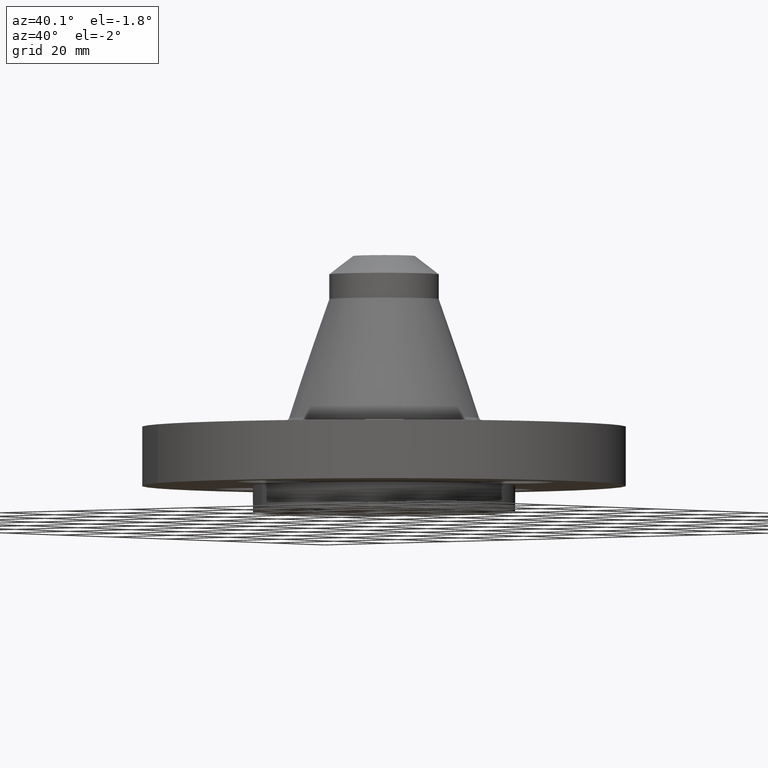
[diagram: clean part render]
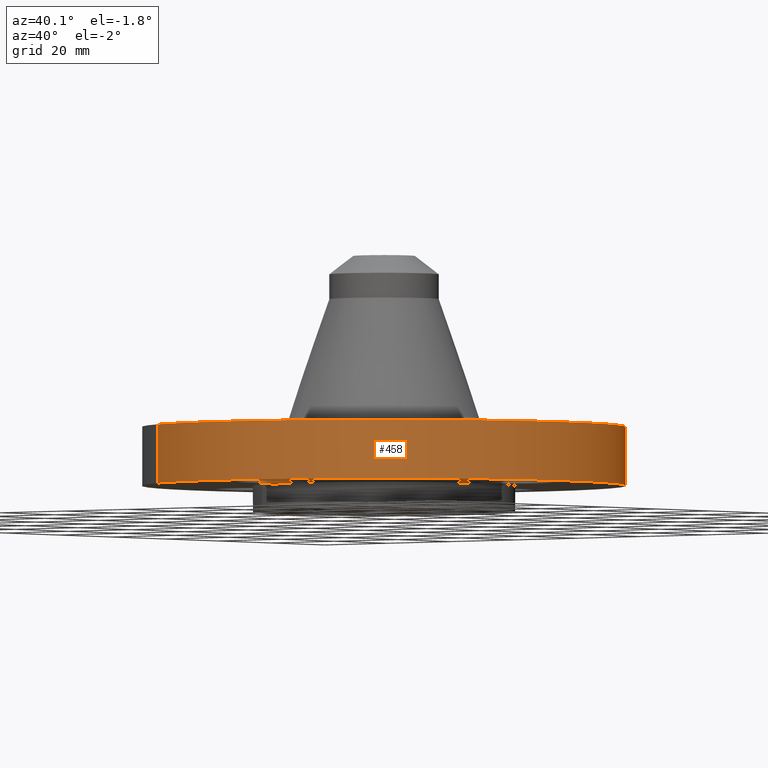
[diagram: same view with one face highlighted and labeled with its STEP entity id]
A machine part, auxiliary view. The second image highlights one B-rep face of the part: STEP entity #458.
In plain terms, the highlighted cylindrical surface (partial cylindrical patch) has radius 58.674 mm, axis along (0, 0, -1).
Its self-contained STEP definition (entity closure, byte-faithful):
#160=AXIS2_PLACEMENT_3D('Circle Axis2P3D',#158,#159,$) ;
#300=AXIS2_PLACEMENT_3D('Circle Axis2P3D',#298,#299,$) ;
#450=AXIS2_PLACEMENT_3D('Cylinder Axis2P3D',#447,#448,#449) ;
#153=CARTESIAN_POINT('Vertex',(-1.10747299418,-2.02721571797,-6.56021169146E-012)) ;
#155=CARTESIAN_POINT('Vertex',(1.10747299418,2.02721571798,-6.56021169146E-012)) ;
#158=CARTESIAN_POINT('Axis2P3D Location',(5.59482469102E-016,1.00003295234E-011,0.)) ;
#298=CARTESIAN_POINT('Axis2P3D Location',(-3.08543392061E-011,3.97540268421E-012,0.560000000002)) ;
#302=CARTESIAN_POINT('Vertex',(1.10747299418,2.02721571798,0.559999999972)) ;
#304=CARTESIAN_POINT('Vertex',(-1.10747299418,-2.02721571798,0.559999999972)) ;
#423=CARTESIAN_POINT('Line Origine',(-1.10747299418,-2.02721571798,0.279999999983)) ;
#428=CARTESIAN_POINT('Line Origine',(1.10747299418,2.02721571798,0.279999999983)) ;
#447=CARTESIAN_POINT('Axis2P3D Location',(0.,0.,0.970000000004)) ;
#159=DIRECTION('Axis2P3D Direction',(0.,0.,-0.0393700787402)) ;
#299=DIRECTION('Axis2P3D Direction',(0.,0.,-0.0393700787402)) ;
#424=DIRECTION('Vector Direction',(0.,0.,-0.0393700787402)) ;
#429=DIRECTION('Vector Direction',(0.,0.,-0.0393700787402)) ;
#448=DIRECTION('Axis2P3D Direction',(0.,0.,-0.0393700787402)) ;
#449=DIRECTION('Axis2P3D XDirection',(0.0188750212049,0.0345504945626,0.)) ;
#425=VECTOR('Line Direction',#424,0.0393700787402) ;
#430=VECTOR('Line Direction',#429,0.0393700787402) ;
#453=ORIENTED_EDGE('',*,*,#162,.F.) ;
#454=ORIENTED_EDGE('',*,*,#432,.T.) ;
#455=ORIENTED_EDGE('',*,*,#306,.T.) ;
#456=ORIENTED_EDGE('',*,*,#427,.F.) ;
#458=ADVANCED_FACE('PartBody',(#457),#451,.T.) ;
#161=CIRCLE('generated circle',#160,2.31000000004) ;
#301=CIRCLE('generated circle',#300,2.31000000004) ;
#451=CYLINDRICAL_SURFACE('generated cylinder',#450,2.31000000001) ;
#162=EDGE_CURVE('',#156,#154,#161,.T.) ;
#306=EDGE_CURVE('',#303,#305,#301,.T.) ;
#427=EDGE_CURVE('',#154,#305,#426,.F.) ;
#432=EDGE_CURVE('',#156,#303,#431,.F.) ;
#452=EDGE_LOOP('',(#453,#454,#455,#456)) ;
#457=FACE_OUTER_BOUND('',#452,.T.) ;
#426=LINE('Line',#423,#425) ;
#431=LINE('Line',#428,#430) ;
#154=VERTEX_POINT('',#153) ;
#156=VERTEX_POINT('',#155) ;
#303=VERTEX_POINT('',#302) ;
#305=VERTEX_POINT('',#304) ;